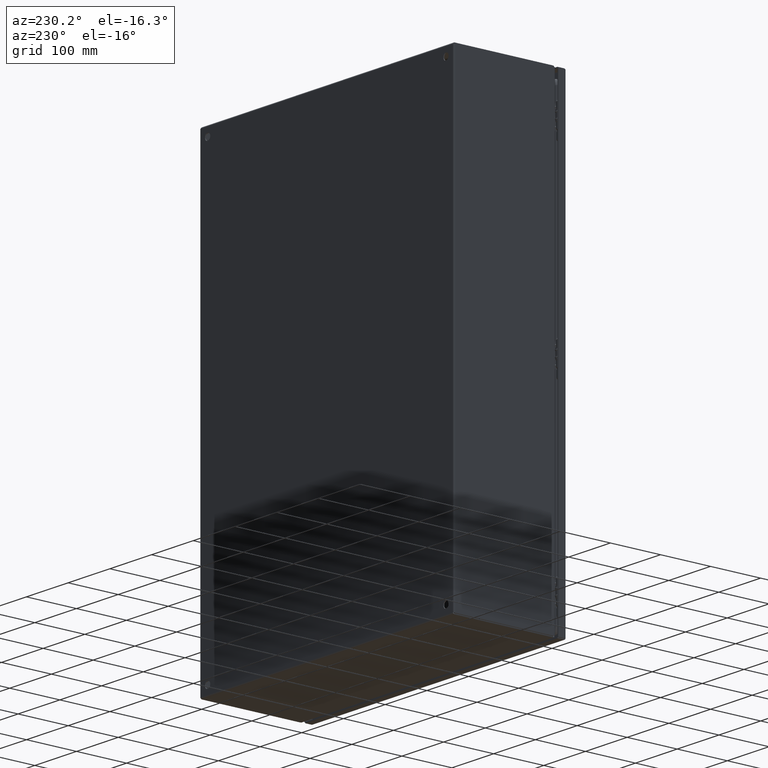
[diagram: clean part render]
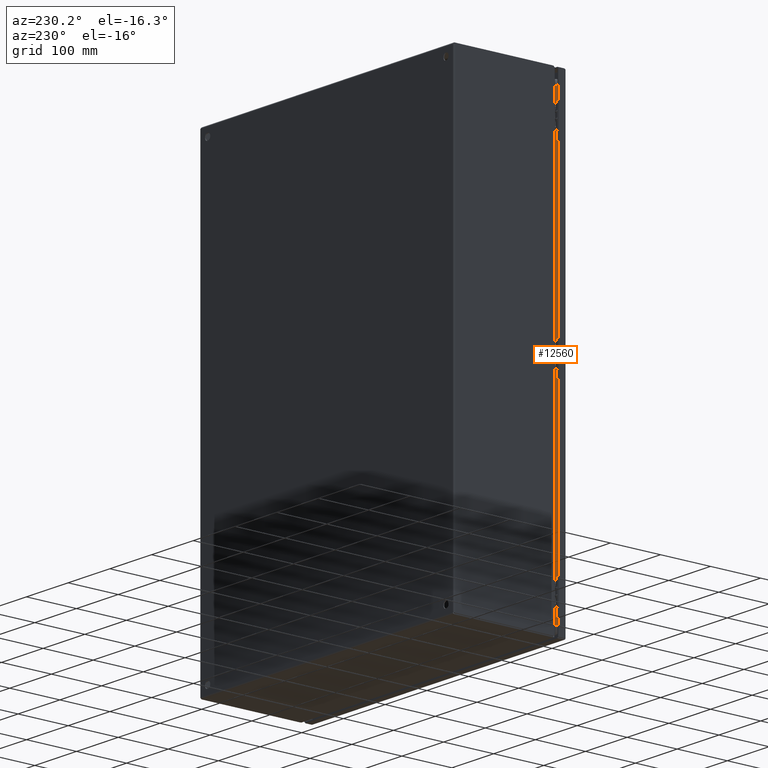
[diagram: same view with one face highlighted and labeled with its STEP entity id]
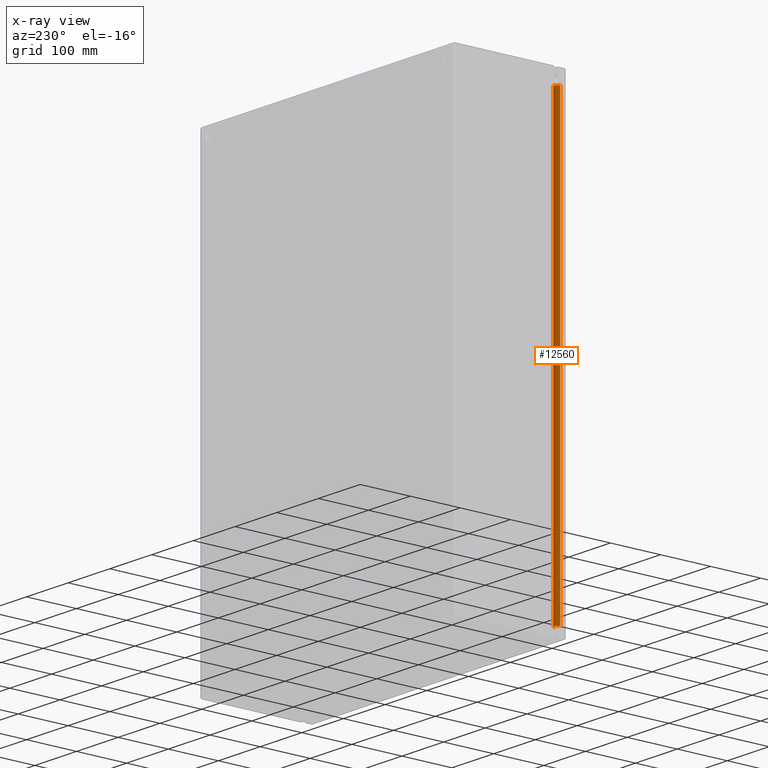
[diagram: x-ray of the same camera — body ghosted, the highlighted face saturated]
A machine part, auxiliary view. The second image highlights one B-rep face of the part: STEP entity #12560.
The next image is the same camera in x-ray: the body ghosted, the highlighted face saturated — about 0% of this face is hidden behind the body in this view.
In plain terms, the highlighted cylindrical surface (edge-blend (fillet) strip) has radius 6.35 mm, axis along (-0, -0, -1).
Its self-contained STEP definition (entity closure, byte-faithful):
#602 = DIRECTION ( 'NONE',  ( -3.397703270508142765E-31, -9.992007221626408864E-16, -1.000000000000000000 ) ) ;
#1581 = ORIENTED_EDGE ( 'NONE', *, *, #19004, .F. ) ;
#3213 = CIRCLE ( 'NONE', #23958, 0.2499999999999986955 ) ;
#3541 = EDGE_CURVE ( 'NONE', #8891, #14265, #21797, .T. ) ;
#3830 = EDGE_CURVE ( 'NONE', #8891, #27099, #3213, .T. ) ;
#4009 = DIRECTION ( 'NONE',  ( 1.348981432413130460E-15, 9.992007221626400975E-16, 1.000000000000000000 ) ) ;
#4486 = CARTESIAN_POINT ( 'NONE',  ( -11.01100000000002588, -8.765000000000011227, -17.01100000000001344 ) ) ;
#6943 = DIRECTION ( 'NONE',  ( 1.000000000000000000, 0.0000000000000000000, 0.0000000000000000000 ) ) ;
#8213 = DIRECTION ( 'NONE',  ( 3.397703270508142765E-31, 9.992007221626408864E-16, 1.000000000000000000 ) ) ;
#8272 = FACE_OUTER_BOUND ( 'NONE', #9166, .T. ) ;
#8891 = VERTEX_POINT ( 'NONE', #13159 ) ;
#9091 = CARTESIAN_POINT ( 'NONE',  ( -11.26099999999999923, -8.764999999999975699, 17.01099999999999923 ) ) ;
#9166 = EDGE_LOOP ( 'NONE', ( #25424, #16871, #1581, #22173 ) ) ;
#10215 = CARTESIAN_POINT ( 'NONE',  ( -11.01100000000003831, -8.765000000000011227, -17.01099999999999923 ) ) ;
#10896 = LINE ( 'NONE', #10215, #25670 ) ;
#11265 = EDGE_CURVE ( 'NONE', #17838, #14265, #24771, .T. ) ;
#11434 = AXIS2_PLACEMENT_3D ( 'NONE', #13909, #4009, #6943 ) ;
#12560 = ADVANCED_FACE ( 'NONE', ( #8272 ), #22351, .T. ) ;
#12768 = CARTESIAN_POINT ( 'NONE',  ( -11.51100000000001522, -8.765000000000011227, -17.01099999999999923 ) ) ;
#12966 = CARTESIAN_POINT ( 'NONE',  ( -11.51100000000000101, -8.765000000000011227, -17.01099999999999923 ) ) ;
#13159 = CARTESIAN_POINT ( 'NONE',  ( -11.51099999999999390, -8.764999999999977476, 17.01099999999999923 ) ) ;
#13738 = AXIS2_PLACEMENT_3D ( 'NONE', #20170, #20026, #24508 ) ;
#13909 = CARTESIAN_POINT ( 'NONE',  ( -11.26100000000004542, -8.765000000000009450, -17.01099999999999923 ) ) ;
#14265 = VERTEX_POINT ( 'NONE', #12768 ) ;
#16871 = ORIENTED_EDGE ( 'NONE', *, *, #3830, .T. ) ;
#17838 = VERTEX_POINT ( 'NONE', #4486 ) ;
#18525 = DIRECTION ( 'NONE',  ( -1.348981432413130460E-15, -9.992007221626400975E-16, -1.000000000000000000 ) ) ;
#19004 = EDGE_CURVE ( 'NONE', #17838, #27099, #10896, .T. ) ;
#20026 = DIRECTION ( 'NONE',  ( -1.348981432413130460E-15, -9.992007221626400975E-16, -1.000000000000000000 ) ) ;
#20170 = CARTESIAN_POINT ( 'NONE',  ( -11.26099999999999923, -8.764999999999975699, 17.01099999999999923 ) ) ;
#21797 = LINE ( 'NONE', #12966, #21986 ) ;
#21986 = VECTOR ( 'NONE', #602, 39.37007874015748143 ) ;
#22173 = ORIENTED_EDGE ( 'NONE', *, *, #11265, .T. ) ;
#22351 = CYLINDRICAL_SURFACE ( 'NONE', #13738, 0.2499999999999986955 ) ;
#23958 = AXIS2_PLACEMENT_3D ( 'NONE', #9091, #18525, #26548 ) ;
#24508 = DIRECTION ( 'NONE',  ( 1.000000000000000000, 0.0000000000000000000, 0.0000000000000000000 ) ) ;
#24771 = CIRCLE ( 'NONE', #11434, 0.2499999999999986955 ) ;
#25424 = ORIENTED_EDGE ( 'NONE', *, *, #3541, .F. ) ;
#25670 = VECTOR ( 'NONE', #8213, 39.37007874015748143 ) ;
#26548 = DIRECTION ( 'NONE',  ( 1.000000000000000000, 0.0000000000000000000, 0.0000000000000000000 ) ) ;
#27099 = VERTEX_POINT ( 'NONE', #27773 ) ;
#27773 = CARTESIAN_POINT ( 'NONE',  ( -11.01099999999999390, -8.764999999999977476, 17.01099999999999923 ) ) ;